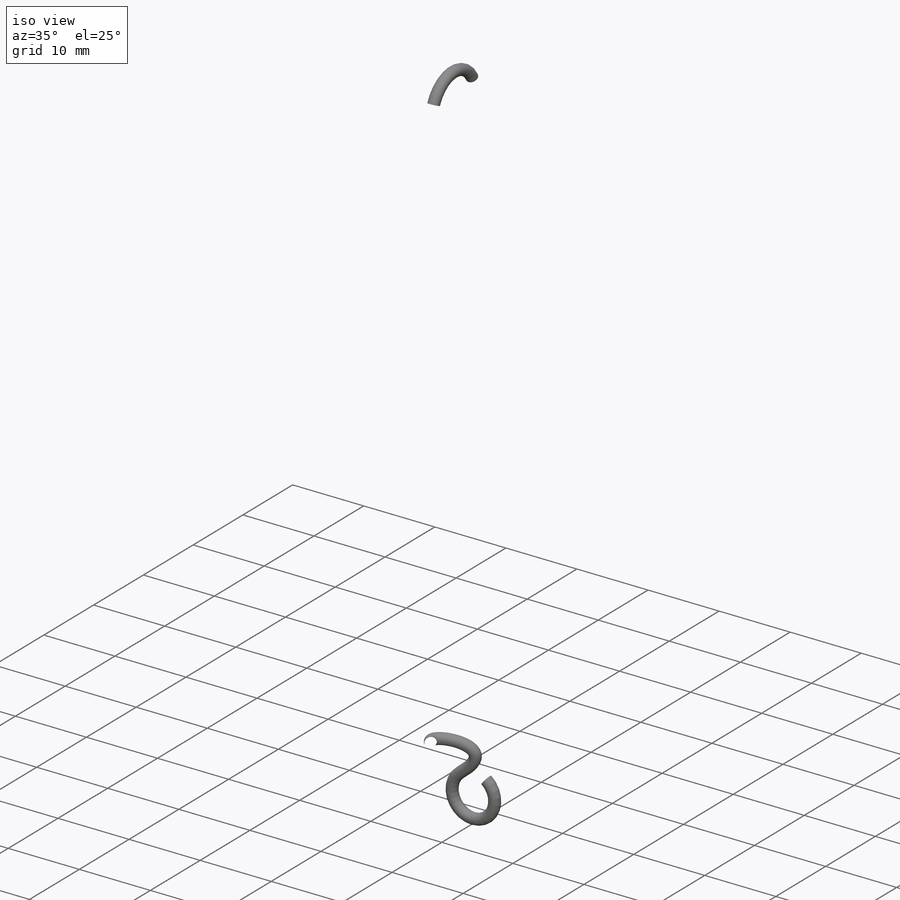
[diagram: iso view]
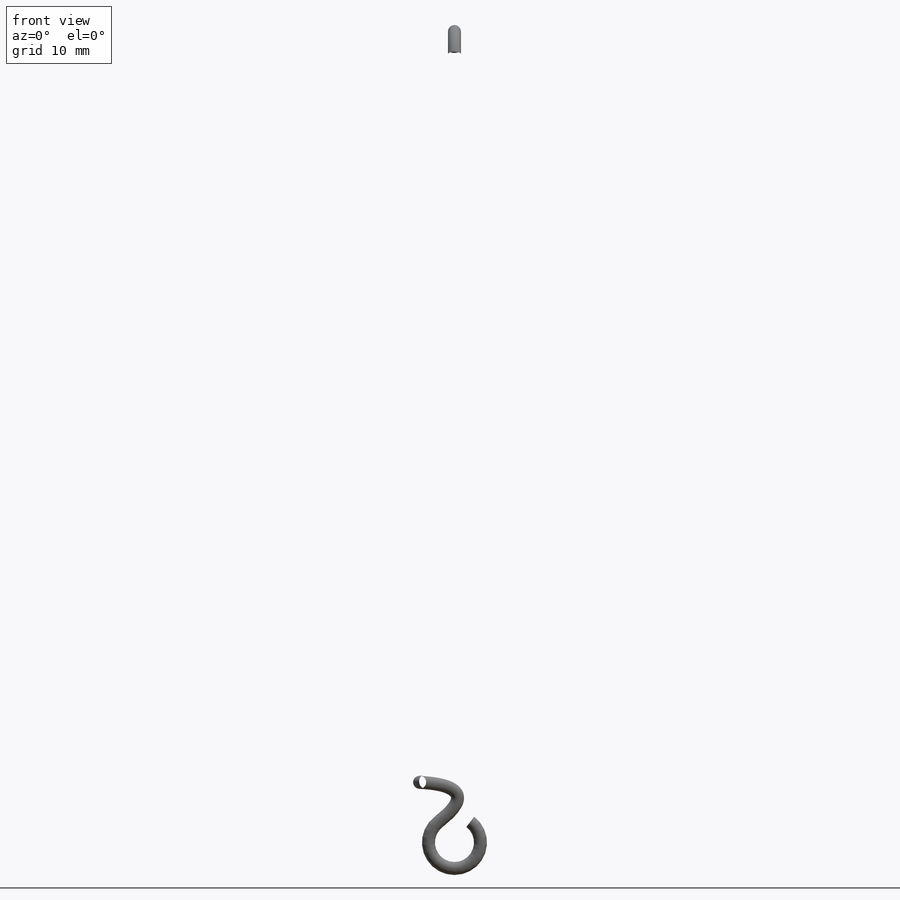
[diagram: front view]
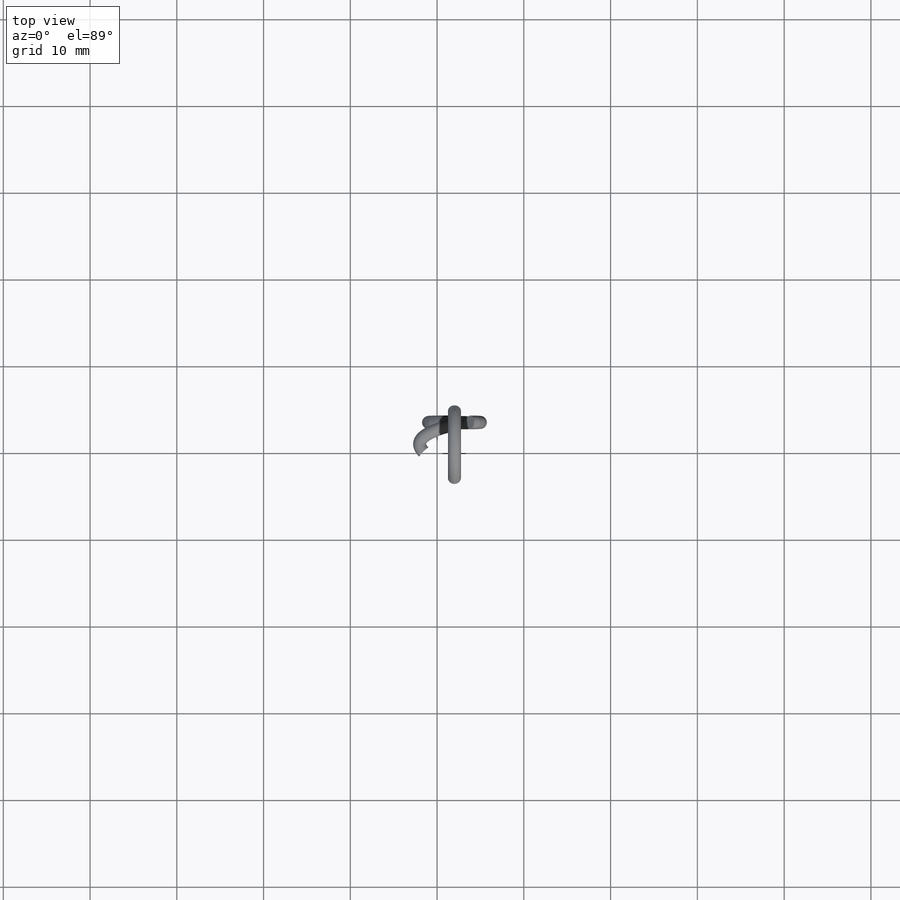
[diagram: top view]
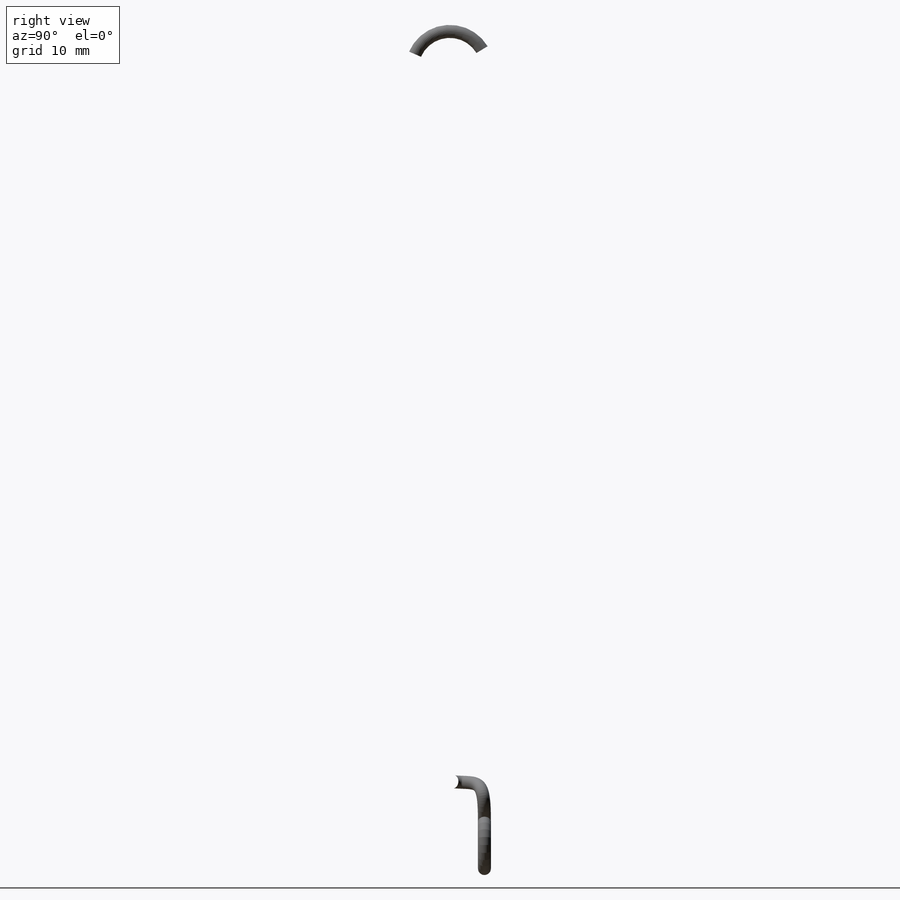
[diagram: right view]
SOLIDWORKS PART (.sldprt)
format: sldprt  version: not decoded by parser v0  size: 2,526,208 bytes
history: native  units: mm
features: plane x7, sketch x5, material x1, helix x1, sweep x1 (+10 scaffold rows collapsed)
feature tree (25):
  scaffold x10  (default folders/planes/origin — collapsed)
  material  "Plain Carbon Steel"
  plane  "Plan de face"
  plane  "Plan de dessus"
  plane  "Plan de droite"
  plane  "Plane1"
  plane  "Plane2"  Offset=3mm
  sketch  "Sketch2"  dims[D1=10.0mm]
  helix  "Helix/Spiral1"  Pitch=78mm
  sketch  "Sketch3"  dims[c1.D1=~2.578286mm c2.D1=75.0deg]
  plane  "Plane3"
  sketch  "Sketch4"  dims[D1=2.0mm]
  sketch  "3DSketch1"
  plane  "Plane4"
  sketch  "Sketch5"  dims[D1=1.5mm]
  sweep  "Sweep1"
decode coverage: 5 of 7 modeling features carry decoded parameters
note: ~ marks probable driven/reference dimensions
note: suppression state not decoded; provenance and decode notes live in map.json
